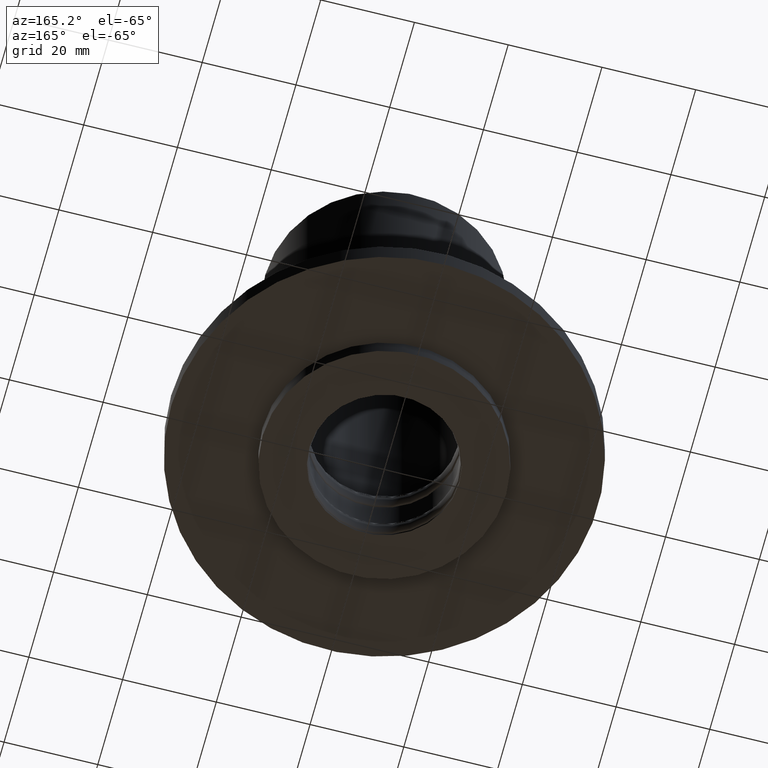
[diagram: clean part render]
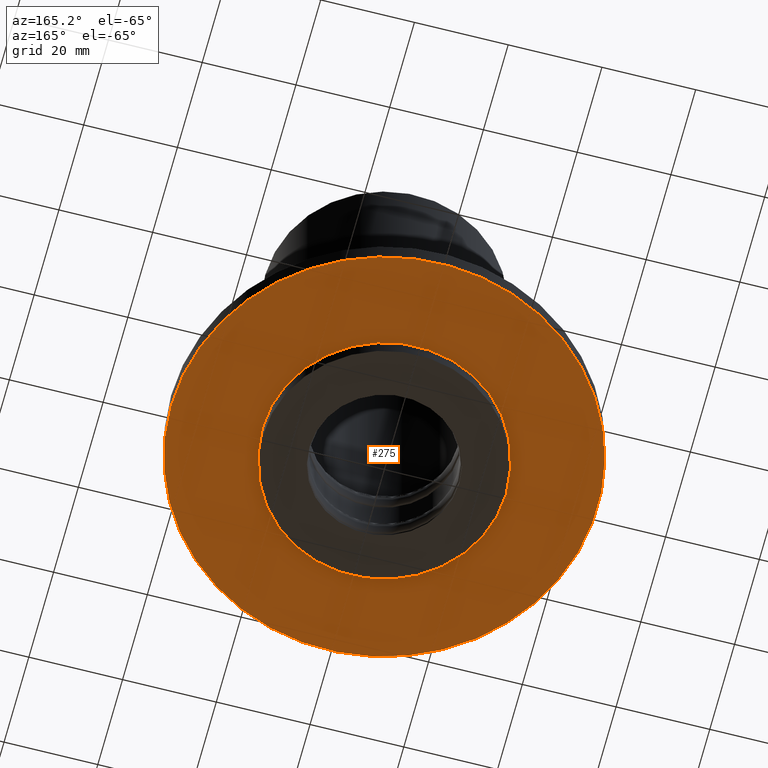
[diagram: same view with one face highlighted and labeled with its STEP entity id]
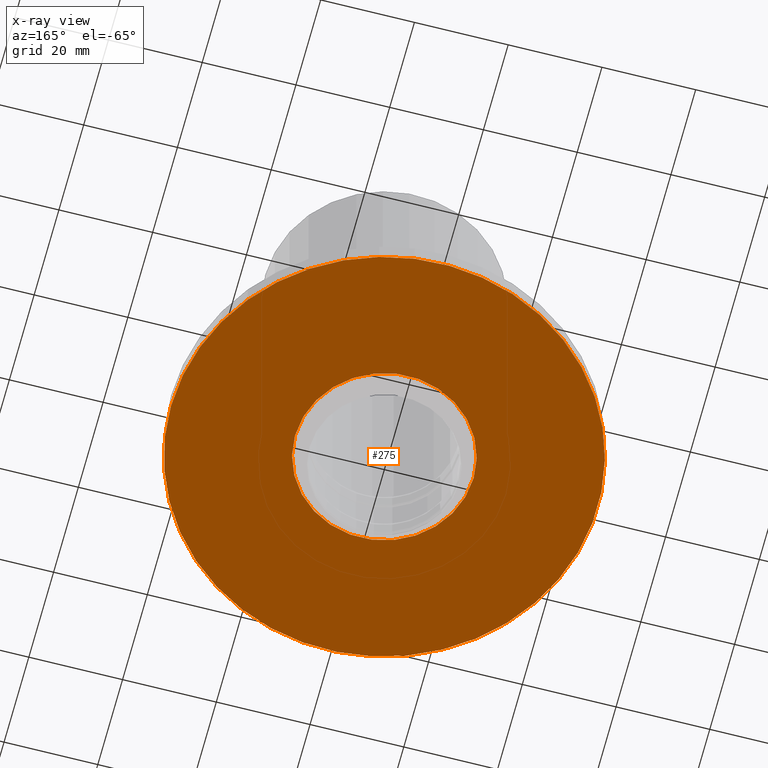
[diagram: x-ray of the same camera — body ghosted, the highlighted face saturated]
A machine part, auxiliary view. The second image highlights one B-rep face of the part: STEP entity #275.
The next image is the same camera in x-ray: the body ghosted, the highlighted face saturated — about 0% of this face is hidden behind the body in this view.
In plain terms, the highlighted planar face has unit normal (0, 0, -1).
Its self-contained STEP definition (entity closure, byte-faithful):
#212=CARTESIAN_POINT('',(19.050000000000004,2.332952E-015,-5.0));
#213=VERTEX_POINT('',#212);
#214=CARTESIAN_POINT('',(0.0,0.0,-5.0));
#215=DIRECTION('',(0.0,0.0,1.0));
#216=DIRECTION('',(-1.0,0.0,0.0));
#217=AXIS2_PLACEMENT_3D('',#214,#215,#216);
#218=CIRCLE('',#217,19.050000000000004);
#219=EDGE_CURVE('',#213,#213,#218,.T.);
#240=CARTESIAN_POINT('',(45.5,5.572143E-015,-5.0));
#241=VERTEX_POINT('',#240);
#242=CARTESIAN_POINT('',(0.0,0.0,-5.0));
#243=DIRECTION('',(0.0,0.0,-1.0));
#244=DIRECTION('',(-1.0,0.0,0.0));
#245=AXIS2_PLACEMENT_3D('',#242,#243,#244);
#246=CIRCLE('',#245,45.5);
#247=EDGE_CURVE('',#241,#241,#246,.T.);
#264=CARTESIAN_POINT('',(0.0,0.0,-5.0));
#265=DIRECTION('',(0.0,0.0,-1.0));
#266=DIRECTION('',(-1.0,0.0,0.0));
#267=AXIS2_PLACEMENT_3D('',#264,#265,#266);
#268=PLANE('',#267);
#269=ORIENTED_EDGE('',*,*,#247,.T.);
#270=EDGE_LOOP('',(#269));
#271=FACE_OUTER_BOUND('',#270,.T.);
#272=ORIENTED_EDGE('',*,*,#219,.T.);
#273=EDGE_LOOP('',(#272));
#274=FACE_BOUND('',#273,.T.);
#275=ADVANCED_FACE('',(#271,#274),#268,.T.);